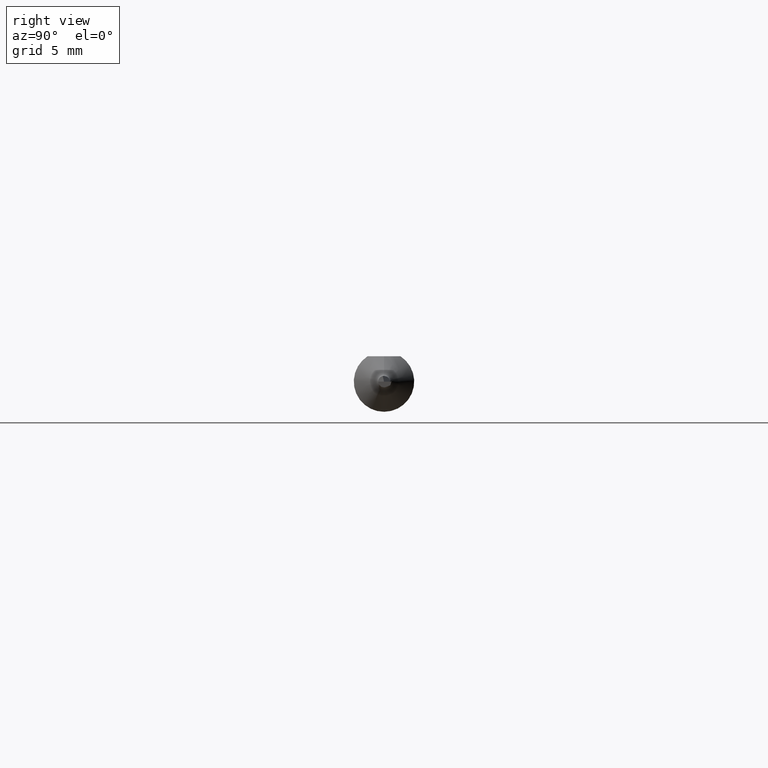
[diagram: clean part render]
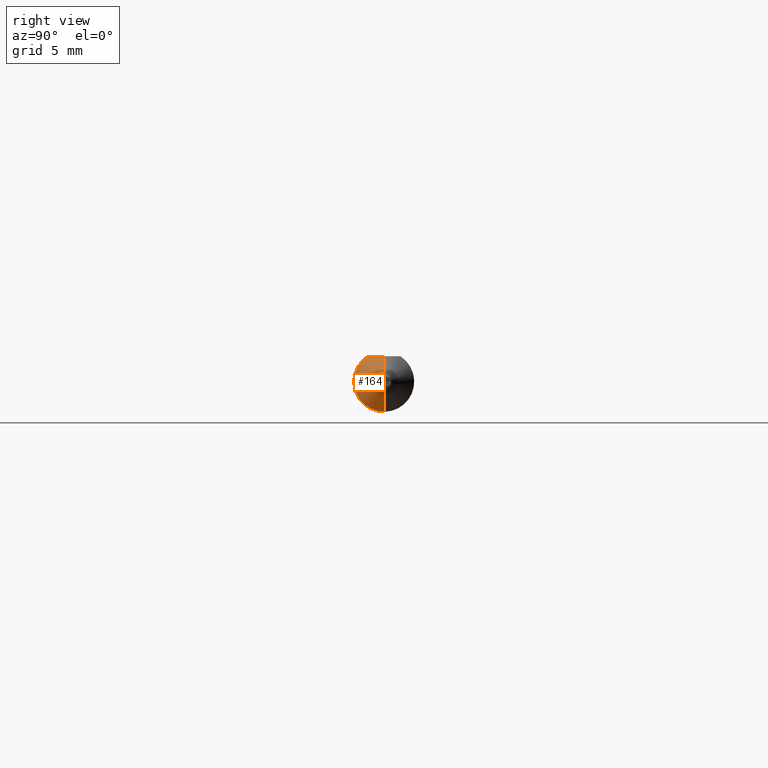
[diagram: same view with one face highlighted and labeled with its STEP entity id]
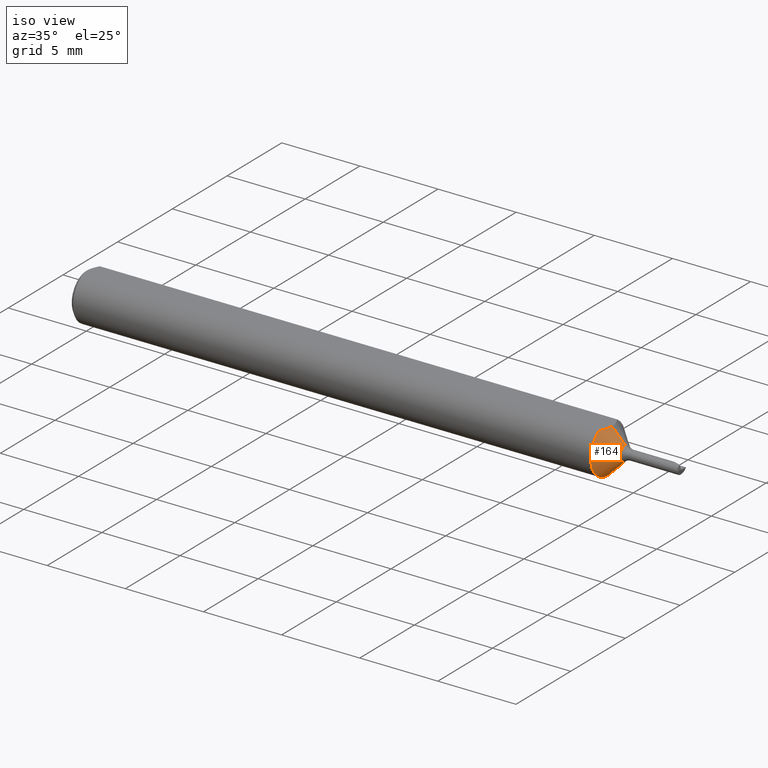
[diagram: same view with one face highlighted and labeled with its STEP entity id]
A machine part, right view. The second image highlights one B-rep face of the part: STEP entity #164.
A second angle (iso view) of the same face is appended — the face is thin or edge-on in the first view.
In plain terms, the highlighted conical surface has half-angle 45 deg.
Its self-contained STEP definition (entity closure, byte-faithful):
#8 = FACE_OUTER_BOUND ( 'NONE', #519, .T. ) ;
#24 = DIRECTION ( 'NONE',  ( -1.000000000000000000, -0.000000000000000000, -0.000000000000000000 ) ) ;
#77 = EDGE_CURVE ( 'NONE', #245, #98, #179, .T. ) ;
#86 = VERTEX_POINT ( 'NONE', #379 ) ;
#95 = EDGE_CURVE ( 'NONE', #98, #86, #436, .T. ) ;
#98 = VERTEX_POINT ( 'NONE', #590 ) ;
#127 = CARTESIAN_POINT ( 'NONE',  ( 1.357677669529663733, 2.335686846277793492E-18, -0.01907233047033634471 ) ) ;
#154 = EDGE_CURVE ( 'NONE', #245, #628, #341, .T. ) ;
#157 = CIRCLE ( 'NONE', #584, 0.06235000000000000264 ) ;
#158 = ORIENTED_EDGE ( 'NONE', *, *, #295, .F. ) ;
#163 = DIRECTION ( 'NONE',  ( -0.7071067811865469066, 0.000000000000000000, 0.7071067811865480168 ) ) ;
#164 = ADVANCED_FACE ( 'NONE', ( #8 ), #520, .T. ) ;
#176 = DIRECTION ( 'NONE',  ( 0.000000000000000000, 0.000000000000000000, 1.000000000000000000 ) ) ;
#179 = CIRCLE ( 'NONE', #551, 0.01907233047033634471 ) ;
#195 = CARTESIAN_POINT ( 'NONE',  ( 1.319734733031429741, -0.02321402113692512537, 0.05235000000000001458 ) ) ;
#235 = DIRECTION ( 'NONE',  ( -1.000000000000000000, -0.000000000000000000, -0.000000000000000000 ) ) ;
#243 = CARTESIAN_POINT ( 'NONE',  ( 1.324400000000000022, -1.923771709464471706E-20, 0.05235000000000001458 ) ) ;
#245 = VERTEX_POINT ( 'NONE', #127 ) ;
#249 = VECTOR ( 'NONE', #163, 39.37007874015748854 ) ;
#264 = CARTESIAN_POINT ( 'NONE',  ( 1.357677669529663733, 0.000000000000000000, 0.000000000000000000 ) ) ;
#266 = ORIENTED_EDGE ( 'NONE', *, *, #336, .T. ) ;
#295 = EDGE_CURVE ( 'NONE', #628, #469, #157, .T. ) ;
#303 = CARTESIAN_POINT ( 'NONE',  ( 1.314400000000000013, -0.03386738844375218604, 0.05235000000000001458 ) ) ;
#318 = CARTESIAN_POINT ( 'NONE',  ( 1.314400000000000013, -0.03386738844375218604, 0.05235000000000001458 ) ) ;
#320 = DIRECTION ( 'NONE',  ( -1.000000000000000000, -0.000000000000000000, -0.000000000000000000 ) ) ;
#336 = EDGE_CURVE ( 'NONE', #86, #469, #558, .T. ) ;
#341 = LINE ( 'NONE', #647, #437 ) ;
#342 = CARTESIAN_POINT ( 'NONE',  ( 1.314400000000000013, 7.635672792683746671E-18, -0.06235000000000000264 ) ) ;
#344 = CARTESIAN_POINT ( 'NONE',  ( 1.357677669529663733, 0.000000000000000000, 0.000000000000000000 ) ) ;
#379 = CARTESIAN_POINT ( 'NONE',  ( 1.324400000000000022, -1.923771709464471706E-20, 0.05235000000000001458 ) ) ;
#408 = ORIENTED_EDGE ( 'NONE', *, *, #95, .T. ) ;
#436 = LINE ( 'NONE', #639, #249 ) ;
#437 = VECTOR ( 'NONE', #456, 39.37007874015748854 ) ;
#456 = DIRECTION ( 'NONE',  ( -0.7071067811865469066, 8.659560562354939021E-17, -0.7071067811865480168 ) ) ;
#461 = ORIENTED_EDGE ( 'NONE', *, *, #77, .T. ) ;
#469 = VERTEX_POINT ( 'NONE', #318 ) ;
#470 = ORIENTED_EDGE ( 'NONE', *, *, #154, .F. ) ;
#480 = CARTESIAN_POINT ( 'NONE',  ( 1.323328236633305011, -0.01191784003313683775, 0.05235000000000002152 ) ) ;
#492 = AXIS2_PLACEMENT_3D ( 'NONE', #344, #235, #176 ) ;
#516 = CARTESIAN_POINT ( 'NONE',  ( 1.324400000000000022, -0.005923251185922118883, 0.05235000000000002152 ) ) ;
#519 = EDGE_LOOP ( 'NONE', ( #470, #461, #408, #266, #158 ) ) ;
#520 = CONICAL_SURFACE ( 'NONE', #492, 0.01907233047033634471, 0.7853981633974490562 ) ;
#536 = DIRECTION ( 'NONE',  ( 0.000000000000000000, 0.000000000000000000, 1.000000000000000000 ) ) ;
#551 = AXIS2_PLACEMENT_3D ( 'NONE', #264, #320, #536 ) ;
#558 = B_SPLINE_CURVE_WITH_KNOTS ( 'NONE', 3,
 ( #243, #516, #480, #195, #674, #303 ),
 .UNSPECIFIED., .F., .F.,
 ( 4, 2, 4 ),
 ( 0.003036113165764197080, 0.003485293315685289960, 0.003934473465606382406 ),
 .UNSPECIFIED. ) ;
#584 = AXIS2_PLACEMENT_3D ( 'NONE', #612, #24, #665 ) ;
#590 = CARTESIAN_POINT ( 'NONE',  ( 1.357677669529663733, 0.000000000000000000, 0.01907233047033634471 ) ) ;
#612 = CARTESIAN_POINT ( 'NONE',  ( 1.314400000000000013, 0.000000000000000000, 0.000000000000000000 ) ) ;
#628 = VERTEX_POINT ( 'NONE', #342 ) ;
#639 = CARTESIAN_POINT ( 'NONE',  ( 1.357677669529663733, 0.000000000000000000, 0.01907233047033634471 ) ) ;
#647 = CARTESIAN_POINT ( 'NONE',  ( 1.357677669529663733, 2.335686846277793492E-18, -0.01907233047033634471 ) ) ;
#665 = DIRECTION ( 'NONE',  ( 0.000000000000000000, 0.000000000000000000, 1.000000000000000000 ) ) ;
#674 = CARTESIAN_POINT ( 'NONE',  ( 1.317246058472921977, -0.02862778320872364293, 0.05235000000000002152 ) ) ;